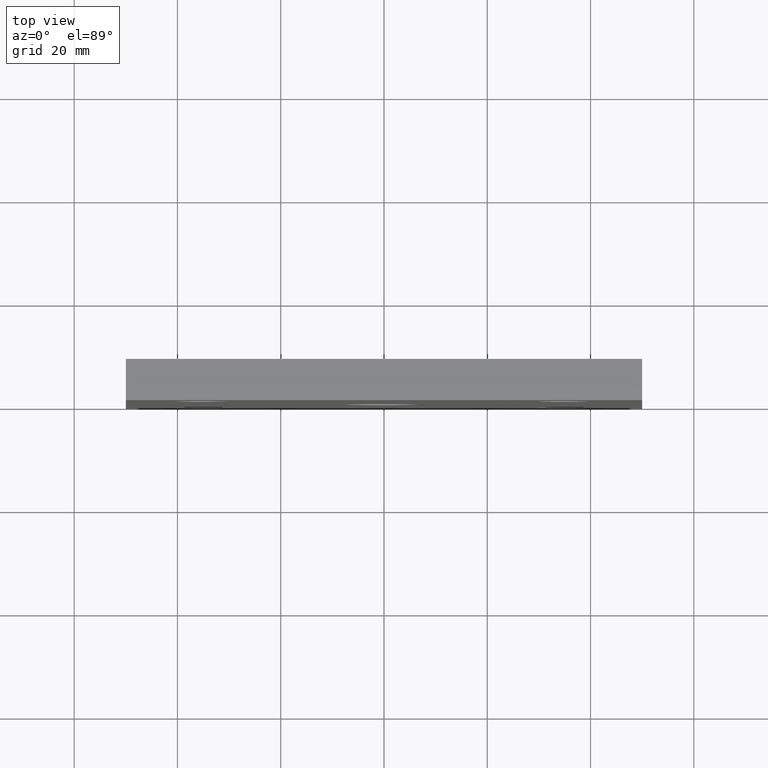
[diagram: clean part render]
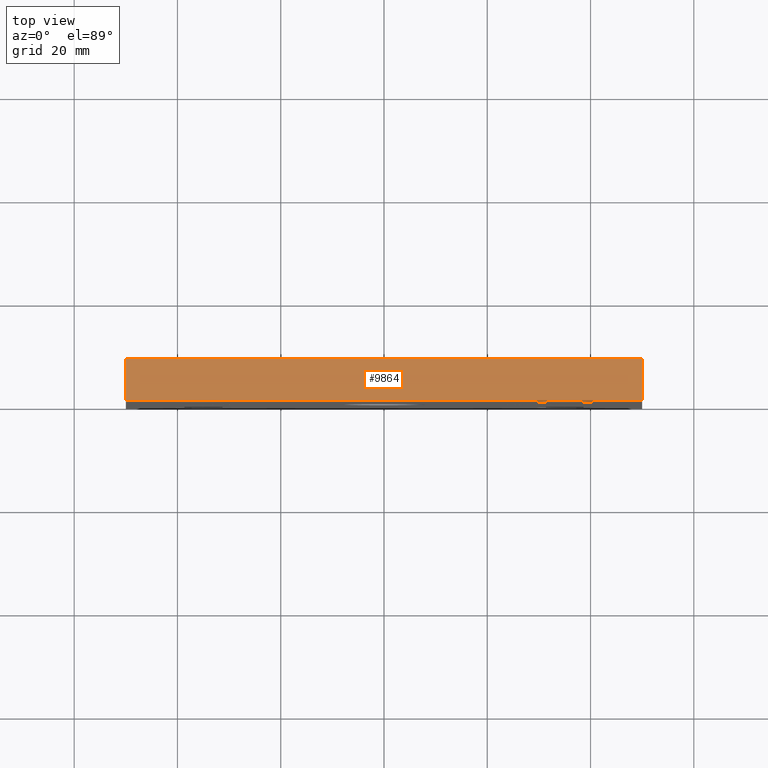
[diagram: same view with one face highlighted and labeled with its STEP entity id]
A machine part, top view. The second image highlights one B-rep face of the part: STEP entity #9864.
In plain terms, the highlighted planar face has unit normal (0, 0, -1).
Its self-contained STEP definition (entity closure, byte-faithful):
#623 = EDGE_CURVE ( 'NONE', #3421, #11741, #12131, .T. ) ;
#1045 = CARTESIAN_POINT ( 'NONE',  ( -49.99999999999999289, 0.000000000000000000, 49.99999999999999289 ) ) ;
#1370 = PLANE ( 'NONE',  #6233 ) ;
#3086 = EDGE_CURVE ( 'NONE', #4496, #3421, #7146, .T. ) ;
#3421 = VERTEX_POINT ( 'NONE', #7349 ) ;
#3586 = EDGE_CURVE ( 'NONE', #4496, #4040, #10206, .T. ) ;
#3763 = DIRECTION ( 'NONE',  ( -1.000000000000000000, 0.000000000000000000, -0.000000000000000000 ) ) ;
#3887 = DIRECTION ( 'NONE',  ( 1.000000000000000000, 0.000000000000000000, 0.000000000000000000 ) ) ;
#3947 = CARTESIAN_POINT ( 'NONE',  ( -49.99999999999999289, 0.000000000000000000, 49.99999999999999289 ) ) ;
#4040 = VERTEX_POINT ( 'NONE', #3947 ) ;
#4251 = CARTESIAN_POINT ( 'NONE',  ( -49.99999999999999289, 8.000000000000000000, 49.99999999999999289 ) ) ;
#4385 = FACE_OUTER_BOUND ( 'NONE', #4690, .T. ) ;
#4451 = DIRECTION ( 'NONE',  ( 1.000000000000000000, 0.000000000000000000, 0.000000000000000000 ) ) ;
#4496 = VERTEX_POINT ( 'NONE', #5129 ) ;
#4556 = LINE ( 'NONE', #1045, #11123 ) ;
#4651 = CARTESIAN_POINT ( 'NONE',  ( 50.00000000000000000, 0.000000000000000000, 49.99999999999999289 ) ) ;
#4690 = EDGE_LOOP ( 'NONE', ( #12824, #10013, #10001, #9524 ) ) ;
#5129 = CARTESIAN_POINT ( 'NONE',  ( -49.99999999999999289, 8.000000000000000000, 49.99999999999999289 ) ) ;
#5169 = DIRECTION ( 'NONE',  ( -0.000000000000000000, -1.000000000000000000, -0.000000000000000000 ) ) ;
#6233 = AXIS2_PLACEMENT_3D ( 'NONE', #9170, #13564, #3763 ) ;
#7146 = LINE ( 'NONE', #11657, #14020 ) ;
#7349 = CARTESIAN_POINT ( 'NONE',  ( 50.00000000000000000, 8.000000000000000000, 49.99999999999999289 ) ) ;
#7607 = DIRECTION ( 'NONE',  ( -0.000000000000000000, -1.000000000000000000, -0.000000000000000000 ) ) ;
#9170 = CARTESIAN_POINT ( 'NONE',  ( -49.99999999999999289, 8.000000000000000000, 49.99999999999999289 ) ) ;
#9478 = EDGE_CURVE ( 'NONE', #4040, #11741, #4556, .T. ) ;
#9524 = ORIENTED_EDGE ( 'NONE', *, *, #3586, .T. ) ;
#9864 = ADVANCED_FACE ( 'NONE', ( #4385 ), #1370, .F. ) ;
#10001 = ORIENTED_EDGE ( 'NONE', *, *, #3086, .F. ) ;
#10013 = ORIENTED_EDGE ( 'NONE', *, *, #623, .F. ) ;
#10206 = LINE ( 'NONE', #4251, #10567 ) ;
#10567 = VECTOR ( 'NONE', #7607, 1000.000000000000000 ) ;
#11123 = VECTOR ( 'NONE', #4451, 1000.000000000000000 ) ;
#11638 = VECTOR ( 'NONE', #5169, 1000.000000000000000 ) ;
#11657 = CARTESIAN_POINT ( 'NONE',  ( -49.99999999999999289, 8.000000000000000000, 49.99999999999999289 ) ) ;
#11741 = VERTEX_POINT ( 'NONE', #4651 ) ;
#11876 = CARTESIAN_POINT ( 'NONE',  ( 50.00000000000000000, 8.000000000000000000, 49.99999999999999289 ) ) ;
#12131 = LINE ( 'NONE', #11876, #11638 ) ;
#12824 = ORIENTED_EDGE ( 'NONE', *, *, #9478, .T. ) ;
#13564 = DIRECTION ( 'NONE',  ( 0.000000000000000000, 0.000000000000000000, -1.000000000000000000 ) ) ;
#14020 = VECTOR ( 'NONE', #3887, 1000.000000000000000 ) ;